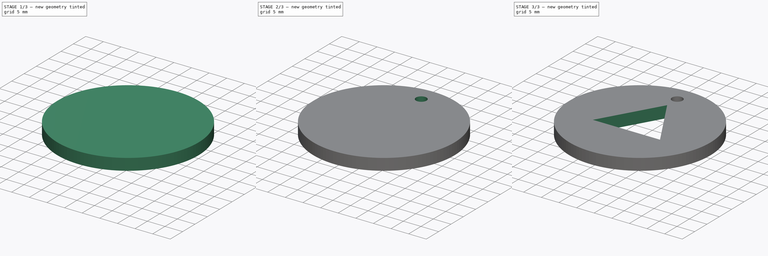
[diagram: build sequence overview — one tinted view per stage of 3, left to right]
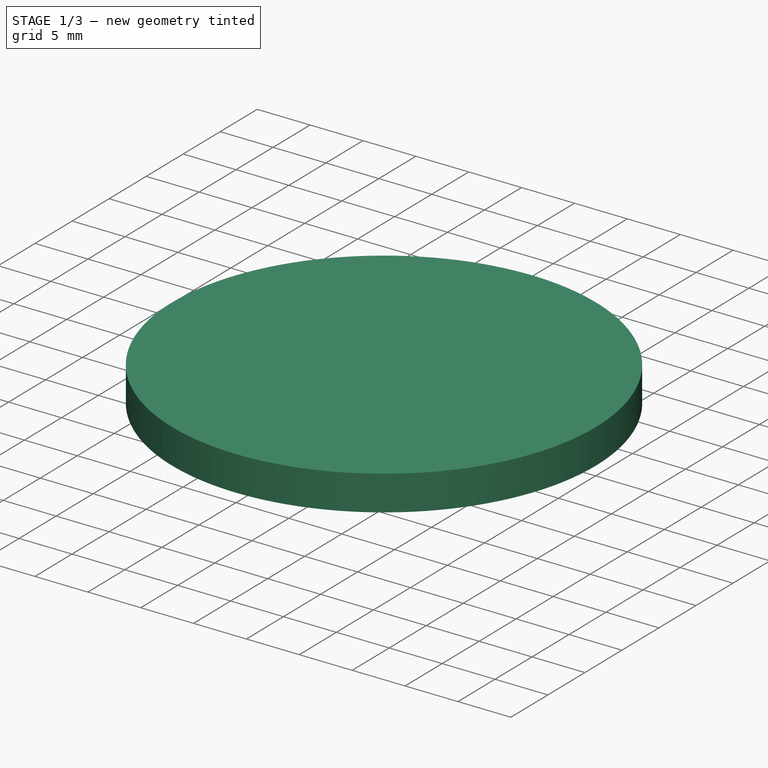
[diagram: stage 1 of 3 — iso view after this stage's code; geometry added in this stage tinted green]
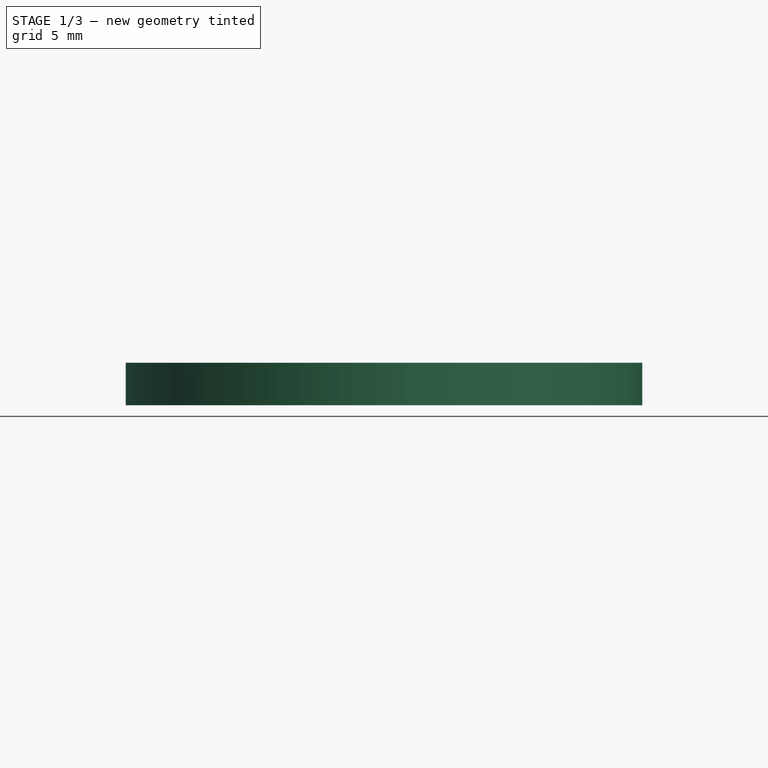
[diagram: stage 1 of 3 — front view after this stage's code; geometry added in this stage tinted green]
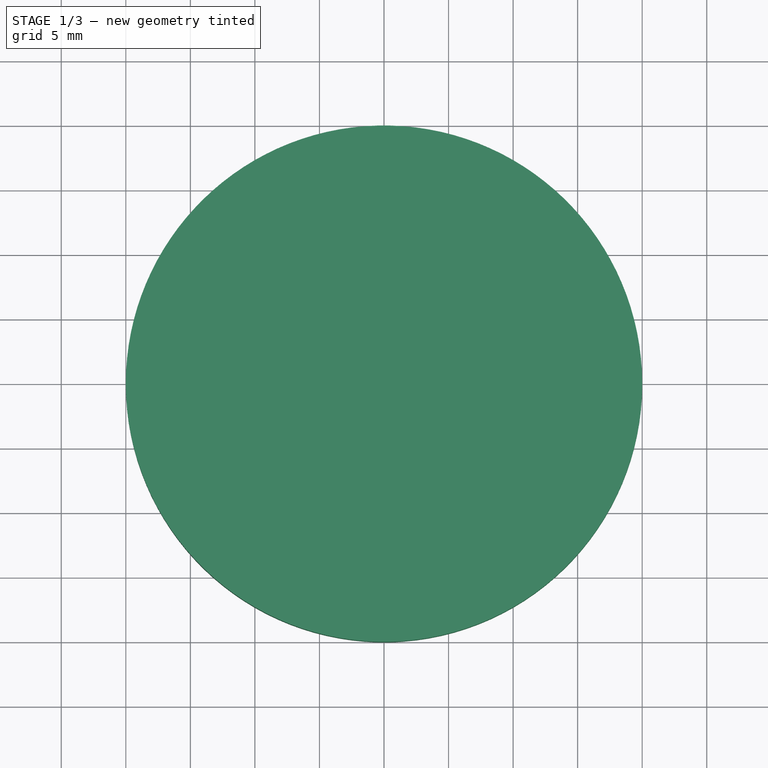
[diagram: stage 1 of 3 — top view after this stage's code; geometry added in this stage tinted green]
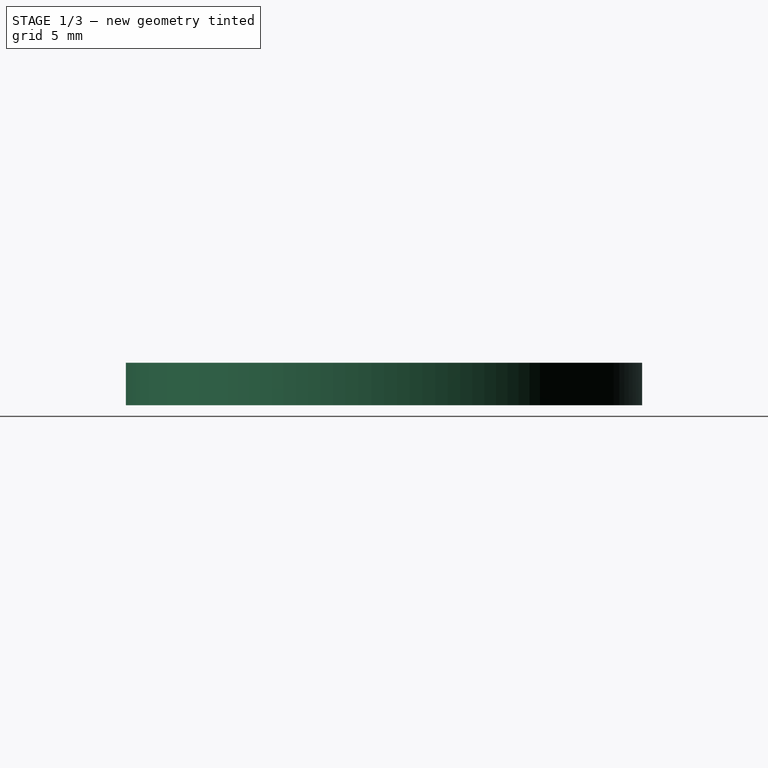
[diagram: stage 1 of 3 — right view after this stage's code; geometry added in this stage tinted green]
FCSTD DOCUMENT  (FreeCAD 0.18R16158 (Git))
Label: T5-ej1
License: CreativeCommons Attribution-ShareAlike
LicenseURL: http://creativecommons.org/licenses/by-sa/4.0/
objects: Sketcher::SketchObject×5, App::DocumentObjectGroup×2, Part::Feature×2, PartDesign::Pocket×2, PartDesign::ShapeBinder×2, Part::Cylinder×1, PartDesign::FeatureBase×1, PartDesign::Body×1, Part::FeaturePython×1, App::Part×1
note: 17 computed .brp shape members not serialized (recipe doc carries the construction recipe); baked Part::Feature solids carry a one-line shape summary decoded from their .brp

FEATURE [Part::Cylinder] Cylinder  label="casino-chip-main body"
  Angle = 360
  AttacherType = Attacher::AttachEngine3D
  Height = 3.3
  Radius = 20
FEATURE [Sketcher::SketchObject] Sketch  label="hole-sketch"
  MapMode = 5
  Placement = pos=(0,0,3.3) rot=(0,0,1;0rad)
  Support = -> [Cylinder]
  sketch-geometry (1):
    g0: Circle CenterX=0 CenterY=15.1 CenterZ=0 NormalX=0 NormalY=0 NormalZ=1 AngleXU=0 Radius=1.5
  constraints (3):
    c: Radius(g0) = 1.5
    c: PointOnObject(g0,g-2)
    c: DistanceY(g-1,g0) = 15.1
FEATURE [App::DocumentObjectGroup] Group001  label="Casino-chip-src"
  Group = -> [Cylinder]
FEATURE [Part::Feature] Sweep  label="key-ring-model-1"
  Placement = pos=(-1.2,24.7546,1.6391) rot=(0.333333,0.881918,0.333333;1.69612rad)
  shape: bbox 3.31 x 27.02 x 26.33 mm, 4 faces (baked)
FEATURE [Part::Feature] Cut  label="key-model-1"
  Placement = pos=(-5.46976,31.0266,0) rot=(0,0,1;0.517888rad)
  shape: bbox 49.82 x 36.6 x 2.3 mm, 44 faces (baked)
FEATURE [PartDesign::FeatureBase] BaseFeature
  BaseFeature = -> Cylinder
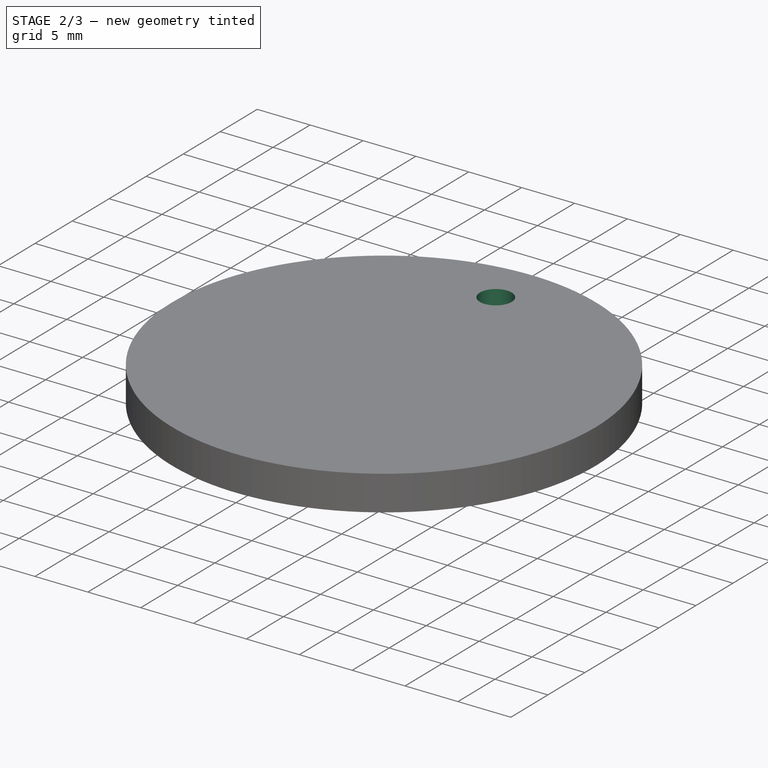
[diagram: stage 2 of 3 — iso view after this stage's code; geometry added in this stage tinted green]
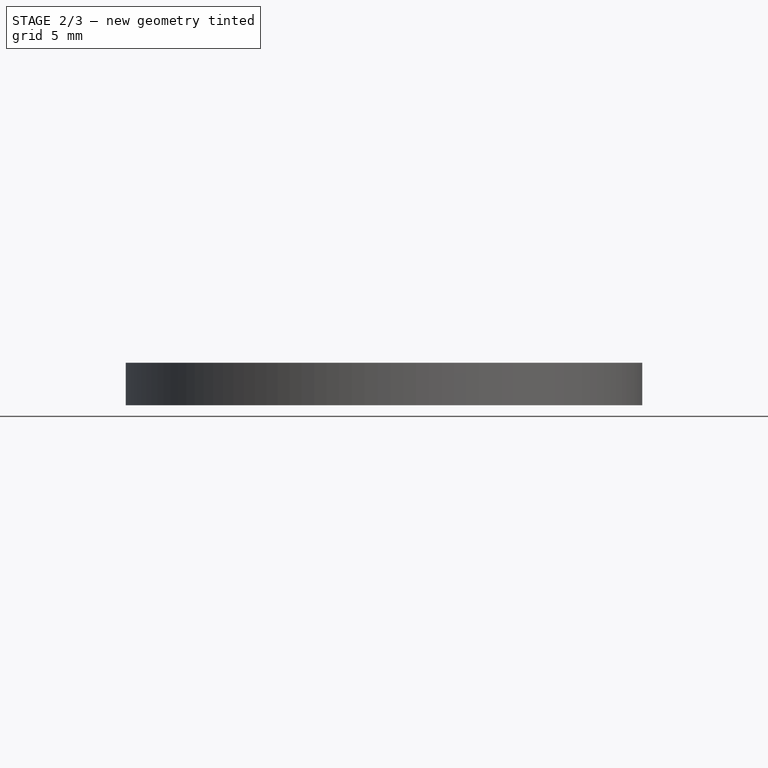
[diagram: stage 2 of 3 — front view after this stage's code; geometry added in this stage tinted green]
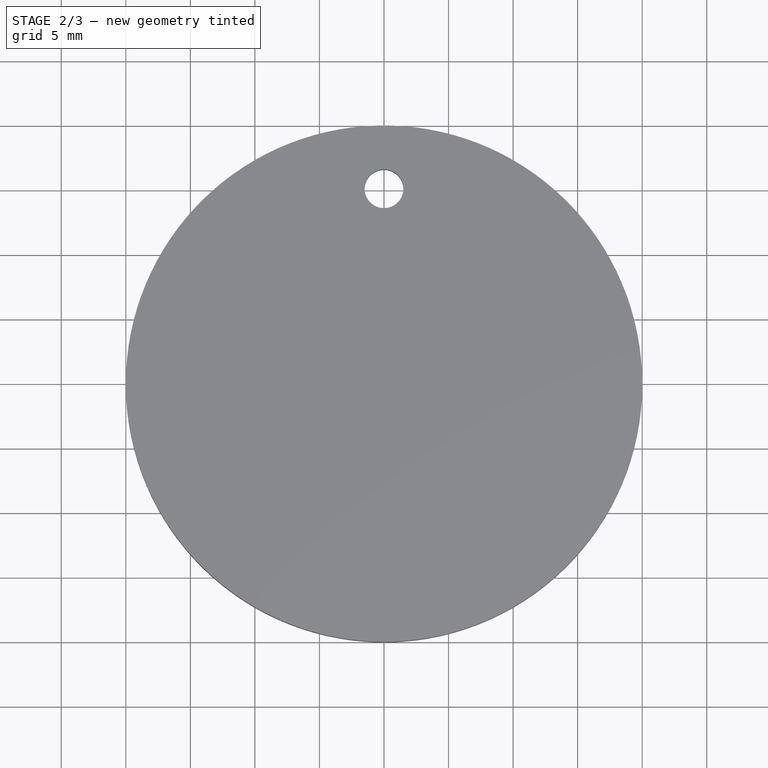
[diagram: stage 2 of 3 — top view after this stage's code; geometry added in this stage tinted green]
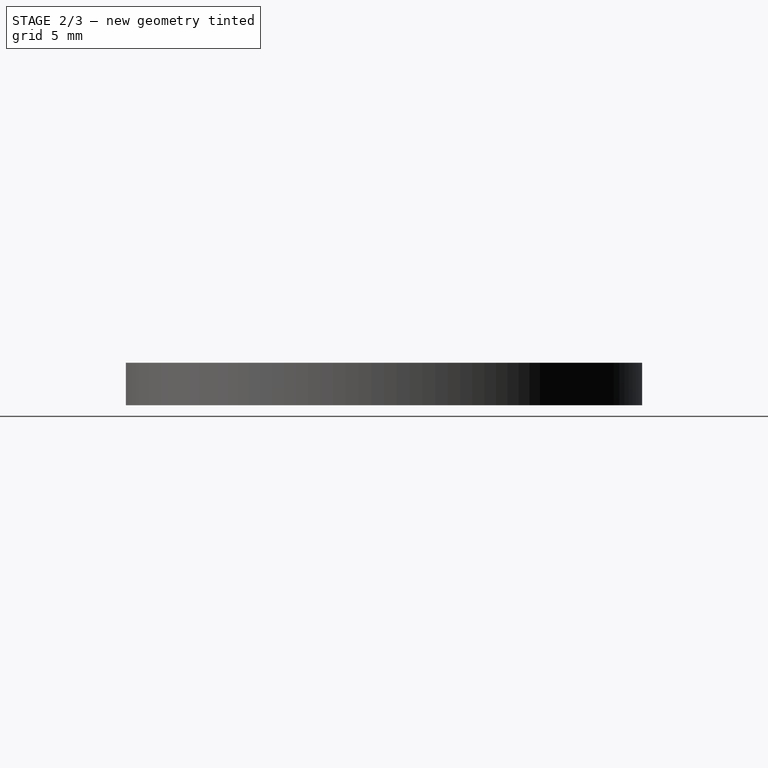
[diagram: stage 2 of 3 — right view after this stage's code; geometry added in this stage tinted green]
FEATURE [PartDesign::Pocket] Pocket  label="casino-chip-key-chain"
  BaseFeature = -> BaseFeature
  Length = 5
  Length2 = 100
  Profile = -> Sketch
  Type = 1
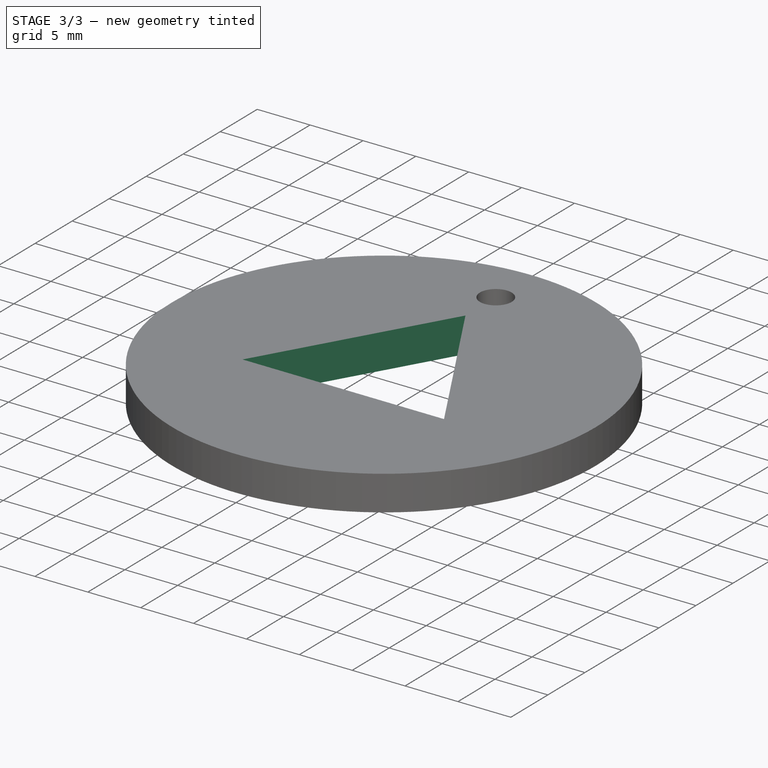
[diagram: stage 3 of 3 — iso view after this stage's code; geometry added in this stage tinted green]
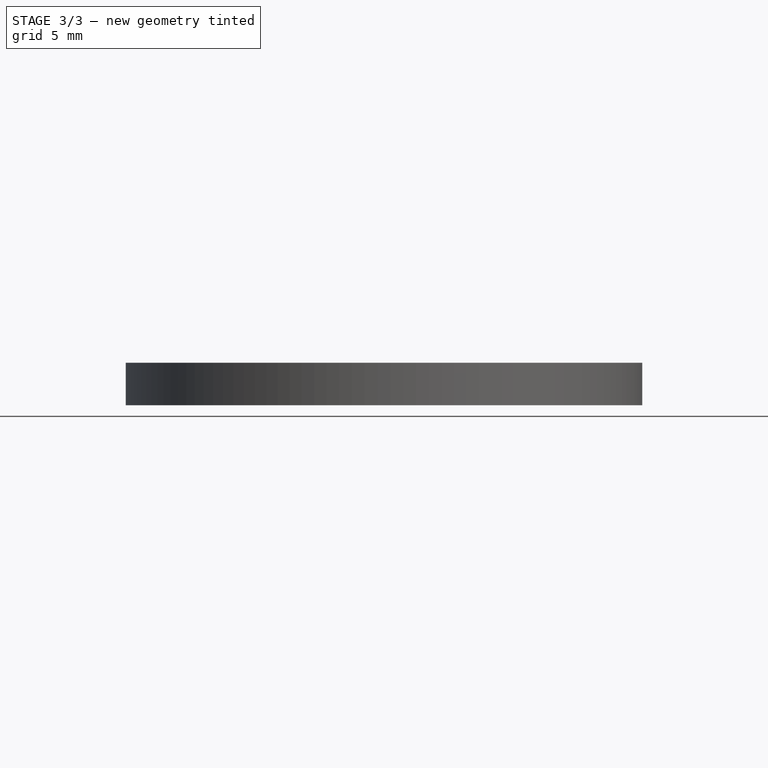
[diagram: stage 3 of 3 — front view after this stage's code; geometry added in this stage tinted green]
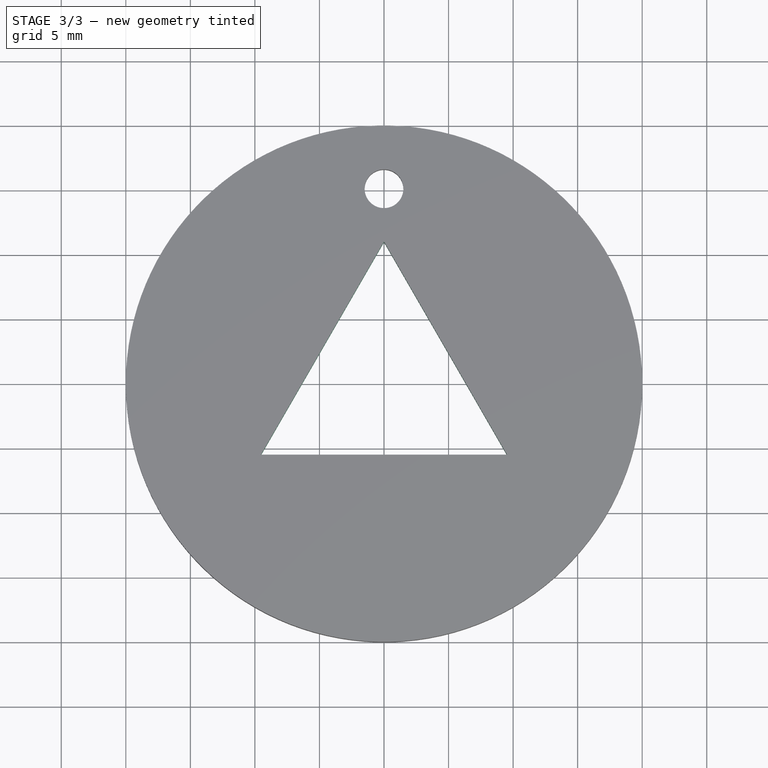
[diagram: stage 3 of 3 — top view after this stage's code; geometry added in this stage tinted green]
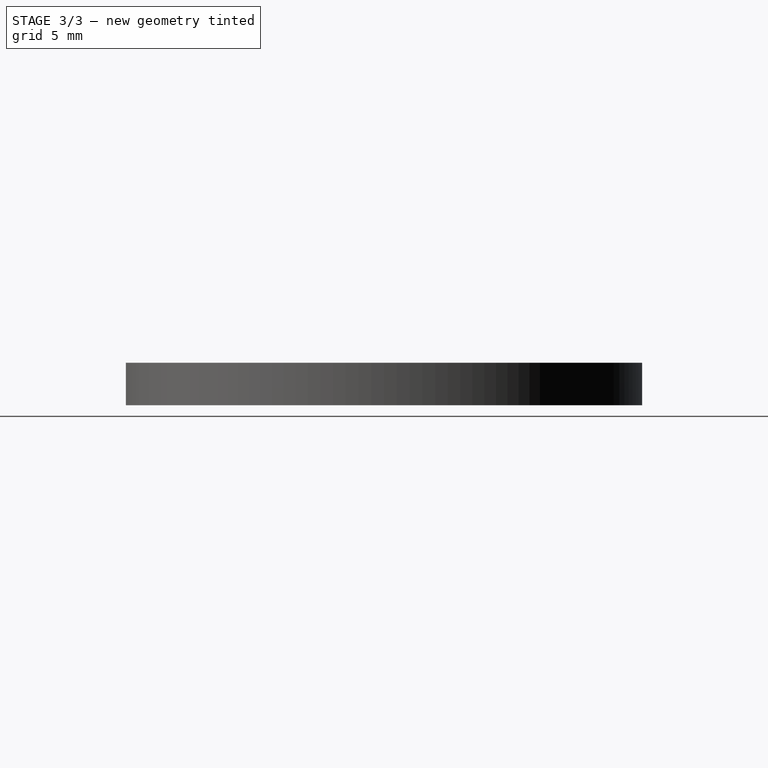
[diagram: stage 3 of 3 — right view after this stage's code; geometry added in this stage tinted green]
FEATURE [Sketcher::SketchObject] Sketch001
  MapMode = 5
  Placement = pos=(0,0,0) rot=(0.57735,0.57735,0.57735;2.0944rad)
  Support = -> [YZ_Plane001]
FEATURE [Sketcher::SketchObject] Sketch002
  MapMode = 5
  Placement = pos=(0,0,0) rot=(1,0,0;3.14159rad)
  Support = -> [Pocket]
FEATURE [Sketcher::SketchObject] Sketch003
  MapMode = 5
  Placement = pos=(0,0,0) rot=(1,0,0;3.14159rad)
  Support = -> [Pocket]
FEATURE [PartDesign::ShapeBinder] CopyClone
  TraceSupport = false
FEATURE [PartDesign::ShapeBinder] CopyClone001
  TraceSupport = false
FEATURE [Sketcher::SketchObject] Sketch005
  MapMode = 5
  Placement = pos=(0,0,3.3) rot=(0,0,1;0rad)
  Support = -> [CopyClone001]
  sketch-geometry (4):
    g0: LineSegment StartX=-9.52628 StartY=-5.5 StartZ=0 EndX=2.7836e-12 EndY=11 EndZ=0
    g1: LineSegment StartX=2.7836e-12 StartY=11 StartZ=0 EndX=9.52628 EndY=-5.5 EndZ=0
    g2: LineSegment StartX=9.52628 StartY=-5.5 StartZ=0 EndX=-9.52628 EndY=-5.5 EndZ=0
    g3: Circle [constr] CenterX=0 CenterY=0 CenterZ=0 NormalX=0 NormalY=0 NormalZ=1 AngleXU=0 Radius=11
  constraints (11):
    c: Coincident(g0,g1)
    c: Coincident(g1,g2)
    c: Coincident(g2,g0)
    c: Horizontal(g2)
    c: Coincident(g3,g-1)
    c: PointOnObject(g0,g3)
    c: PointOnObject(g0,g3)
    c: Radius(g3) = 11
    c: Equal(g0,g2)
    c: Equal(g2,g1)
    c: PointOnObject(g1,g3)
FEATURE [PartDesign::Pocket] Pocket001
  BaseFeature = -> Pocket
  Length = 5
  Length2 = 100
  Profile = -> Sketch005
  Type = 1
FEATURE [PartDesign::Body] PocketBody
  BaseFeature = -> Cylinder
  Group = -> [BaseFeature,Sketch,Pocket,Sketch001,Sketch002,Sketch003,CopyClone,CopyClone001,Sketch005,Pocket001]
  Origin = -> Origin001
  Tip = -> Pocket001
FEATURE [Part::FeaturePython] Clone  label="Clone of casino-chip-key-chain"  # Draft clone (typed FeaturePython)
  Objects = -> [PocketBody]
  Scale = (1,1,1)
FEATURE [App::DocumentObjectGroup] Group  label="Assembly"
  Group = -> [Clone,Sweep,Cut]
FEATURE [App::Part] Part
  Group = -> [PocketBody]
  Origin = -> Origin
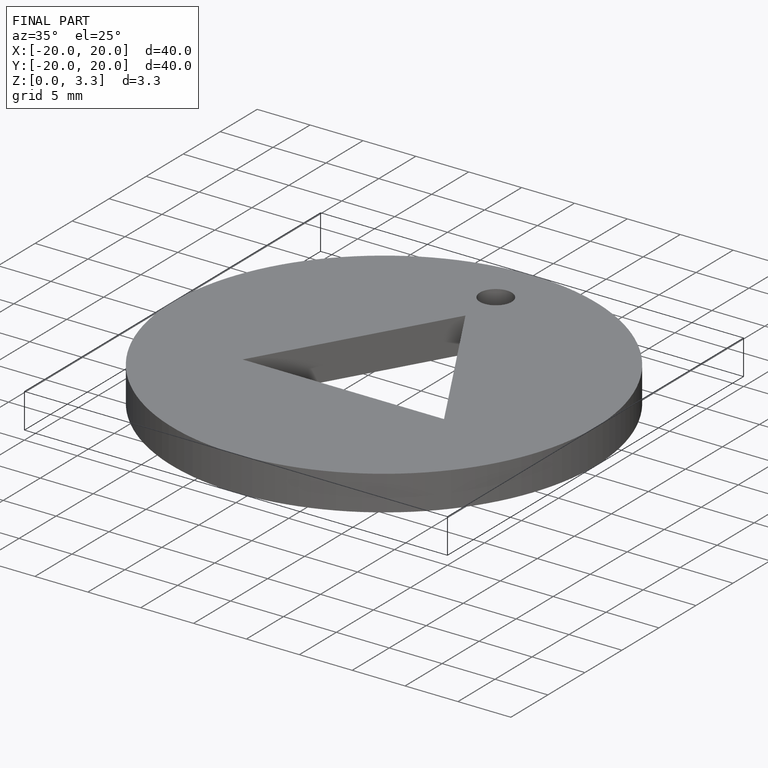
[diagram: finished part — iso view with bounding-box wireframe]
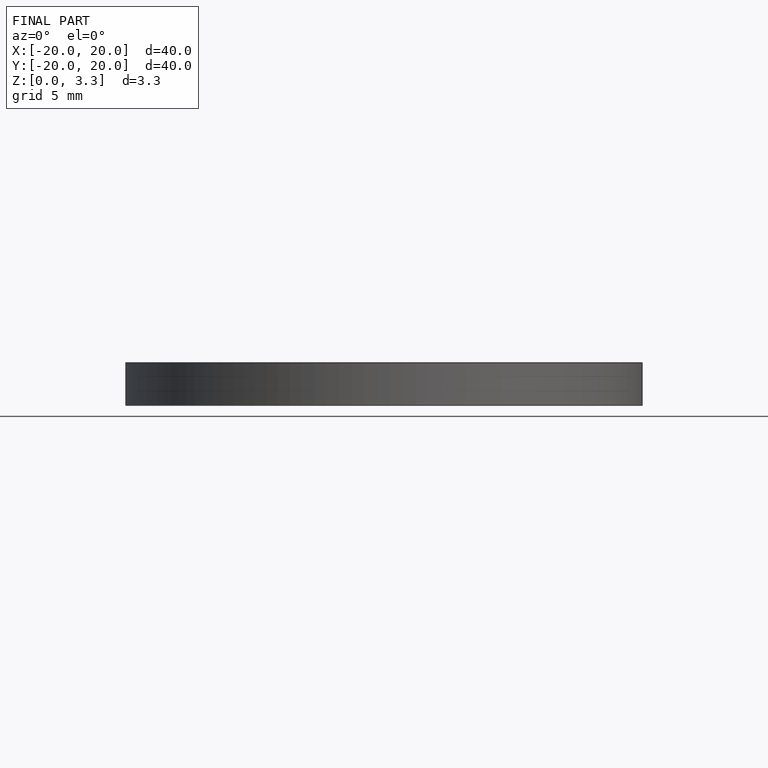
[diagram: finished part — front view with bounding-box wireframe]
